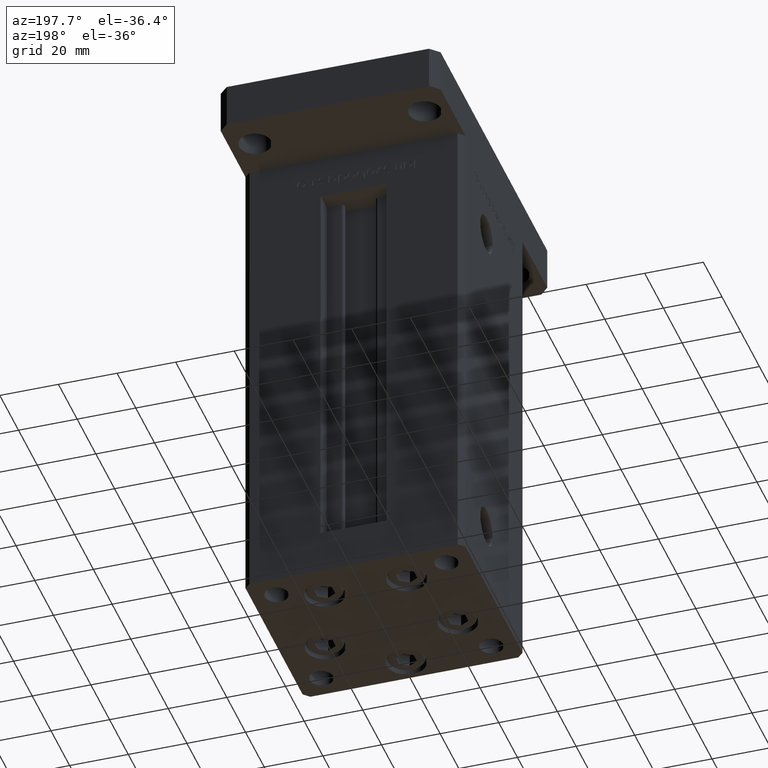
[diagram: clean part render]
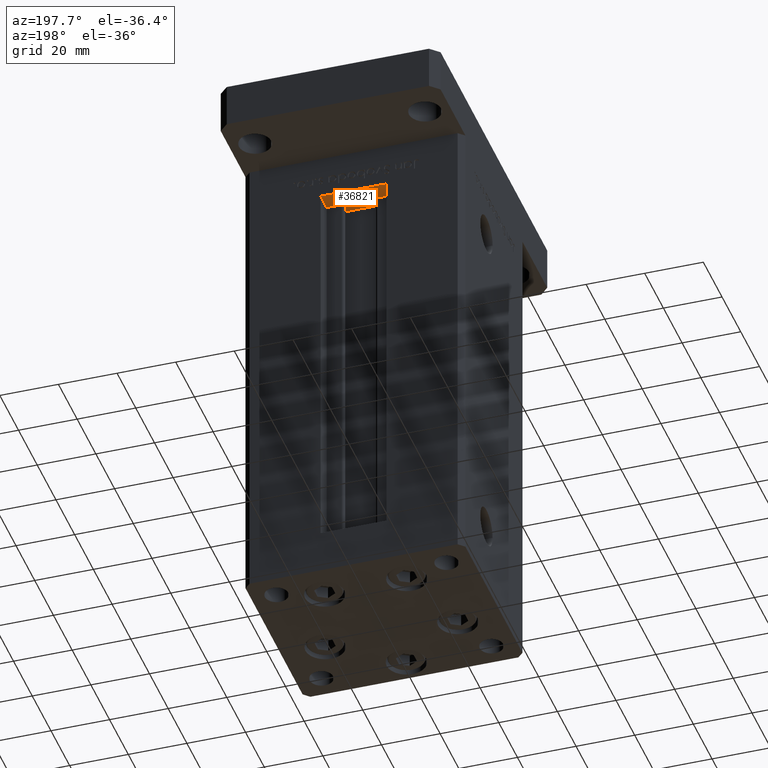
[diagram: same view with one face highlighted and labeled with its STEP entity id]
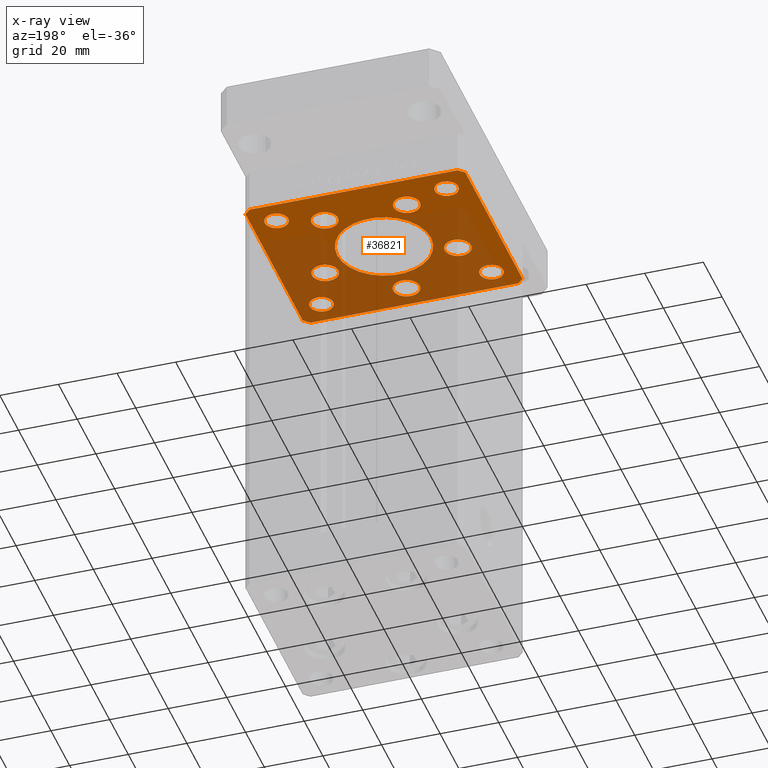
[diagram: x-ray of the same camera — body ghosted, the highlighted face saturated]
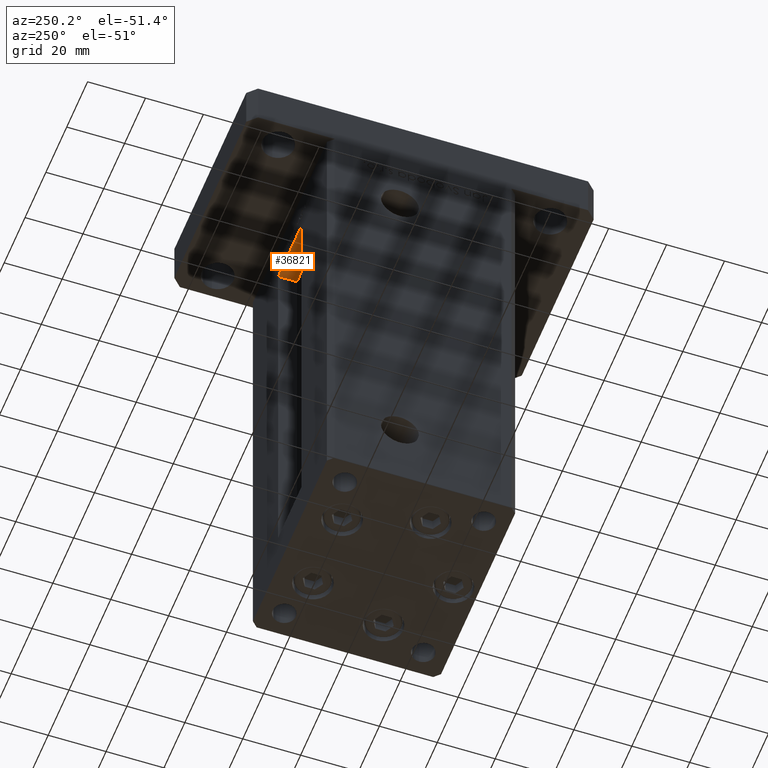
[diagram: same view with one face highlighted and labeled with its STEP entity id]
A machine part, auxiliary view. The second image highlights one B-rep face of the part: STEP entity #36821.
The next image is the same camera in x-ray: the body ghosted, the highlighted face saturated — about 59% of this face is hidden behind the body in this view.
A second angle (auxiliary view) of the same face is appended — the face is thin or edge-on in the first view.
In plain terms, the highlighted planar face has unit normal (0, 0, 1).
Its self-contained STEP definition (entity closure, byte-faithful):
#229 = ORIENTED_EDGE ( 'NONE', *, *, #48311, .F. ) ;
#548 = VERTEX_POINT ( 'NONE', #7159 ) ;
#653 = EDGE_CURVE ( 'NONE', #31100, #50083, #42931, .T. ) ;
#700 = EDGE_CURVE ( 'NONE', #44246, #24739, #36889, .T. ) ;
#725 = ORIENTED_EDGE ( 'NONE', *, *, #16187, .F. ) ;
#941 = CARTESIAN_POINT ( 'NONE',  ( 9.491068579633235913, 19.50000000000000000, -15.00000000000000000 ) ) ;
#952 = VERTEX_POINT ( 'NONE', #12699 ) ;
#1143 = CIRCLE ( 'NONE', #2898, 4.499999999999997335 ) ;
#1306 = VERTEX_POINT ( 'NONE', #941 ) ;
#1564 = EDGE_CURVE ( 'NONE', #40722, #37104, #23697, .T. ) ;
#1602 = EDGE_CURVE ( 'NONE', #31591, #13652, #7487, .T. ) ;
#1984 = CARTESIAN_POINT ( 'NONE',  ( -37.50000000000001421, 30.50000000000000000, -15.00000000000000000 ) ) ;
#2059 = CIRCLE ( 'NONE', #31506, 4.000000000000000000 ) ;
#2186 = VERTEX_POINT ( 'NONE', #8757 ) ;
#2227 = FACE_BOUND ( 'NONE', #10775, .T. ) ;
#2349 = EDGE_CURVE ( 'NONE', #2186, #45705, #33508, .T. ) ;
#2522 = VERTEX_POINT ( 'NONE', #47347 ) ;
#2582 = ORIENTED_EDGE ( 'NONE', *, *, #2349, .F. ) ;
#2668 = CARTESIAN_POINT ( 'NONE',  ( -37.50000000000000000, -30.50000000000004263, -15.00000000000000000 ) ) ;
#2898 = AXIS2_PLACEMENT_3D ( 'NONE', #15111, #48978, #6716 ) ;
#2991 = CARTESIAN_POINT ( 'NONE',  ( -9.491068579633243019, 19.50000000000000000, -15.00000000000000000 ) ) ;
#3102 = DIRECTION ( 'NONE',  ( 0.7071067811865463515, 0.7071067811865487940, 0.000000000000000000 ) ) ;
#3416 = EDGE_CURVE ( 'NONE', #18304, #29034, #37692, .T. ) ;
#3692 = CARTESIAN_POINT ( 'NONE',  ( 27.12741699796953654, -8.000000000000000000, -15.00000000000000000 ) ) ;
#4127 = DIRECTION ( 'NONE',  ( 1.000000000000000000, 0.000000000000000000, 0.000000000000000000 ) ) ;
#4706 = FACE_BOUND ( 'NONE', #35765, .T. ) ;
#5764 = FACE_BOUND ( 'NONE', #25107, .T. ) ;
#5979 = DIRECTION ( 'NONE',  ( 0.000000000000000000, -0.000000000000000000, -1.000000000000000000 ) ) ;
#6294 = DIRECTION ( 'NONE',  ( 1.000000000000000000, 0.000000000000000000, 0.000000000000000000 ) ) ;
#6716 = DIRECTION ( 'NONE',  ( 1.000000000000000000, 0.000000000000000000, 0.000000000000000000 ) ) ;
#6894 = EDGE_CURVE ( 'NONE', #11114, #52916, #12957, .T. ) ;
#6978 = AXIS2_PLACEMENT_3D ( 'NONE', #16585, #24977, #4127 ) ;
#7159 = CARTESIAN_POINT ( 'NONE',  ( -18.12741699796953654, -8.000000000000000000, -15.00000000000000000 ) ) ;
#7399 = VERTEX_POINT ( 'NONE', #53135 ) ;
#7487 = CIRCLE ( 'NONE', #43838, 4.499999999999999112 ) ;
#8100 = LINE ( 'NONE', #37617, #32939 ) ;
#8228 = DIRECTION ( 'NONE',  ( 0.000000000000000000, -0.000000000000000000, -1.000000000000000000 ) ) ;
#8487 = VECTOR ( 'NONE', #32492, 1000.000000000000000 ) ;
#8554 = DIRECTION ( 'NONE',  ( 1.000000000000000000, 0.000000000000000000, 0.000000000000000000 ) ) ;
#8635 = DIRECTION ( 'NONE',  ( -1.000000000000000000, 0.000000000000000000, 0.000000000000000000 ) ) ;
#8757 = CARTESIAN_POINT ( 'NONE',  ( 18.12741699796953299, -8.000000000000000000, -15.00000000000000000 ) ) ;
#8763 = FACE_BOUND ( 'NONE', #24824, .T. ) ;
#8972 = ORIENTED_EDGE ( 'NONE', *, *, #12352, .F. ) ;
#9074 = DIRECTION ( 'NONE',  ( 0.000000000000000000, -0.000000000000000000, -1.000000000000000000 ) ) ;
#9240 = AXIS2_PLACEMENT_3D ( 'NONE', #22820, #43410, #39350 ) ;
#9814 = CARTESIAN_POINT ( 'NONE',  ( -18.49106857963323947, 19.50000000000000000, -15.00000000000000000 ) ) ;
#10094 = CARTESIAN_POINT ( 'NONE',  ( 0.000000000000000000, 0.000000000000000000, -15.00000000000000000 ) ) ;
#10334 = AXIS2_PLACEMENT_3D ( 'NONE', #23704, #31825, #11506 ) ;
#10541 = AXIS2_PLACEMENT_3D ( 'NONE', #16603, #37200, #28522 ) ;
#10775 = EDGE_LOOP ( 'NONE', ( #29762, #38805 ) ) ;
#10855 = DIRECTION ( 'NONE',  ( 0.000000000000000000, -0.000000000000000000, -1.000000000000000000 ) ) ;
#11114 = VERTEX_POINT ( 'NONE', #45146 ) ;
#11168 = FACE_BOUND ( 'NONE', #44059, .T. ) ;
#11235 = VECTOR ( 'NONE', #33107, 1000.000000000000000 ) ;
#11463 = ORIENTED_EDGE ( 'NONE', *, *, #19867, .F. ) ;
#11506 = DIRECTION ( 'NONE',  ( -1.000000000000000000, 0.000000000000000000, 0.000000000000000000 ) ) ;
#11661 = CARTESIAN_POINT ( 'NONE',  ( -33.00000000000000000, 24.00000000000000711, -15.00000000000000000 ) ) ;
#11884 = ORIENTED_EDGE ( 'NONE', *, *, #14170, .F. ) ;
#12099 = AXIS2_PLACEMENT_3D ( 'NONE', #30104, #5979, #25777 ) ;
#12352 = EDGE_CURVE ( 'NONE', #45705, #2186, #14801, .T. ) ;
#12535 = EDGE_CURVE ( 'NONE', #44723, #18304, #53167, .T. ) ;
#12697 = DIRECTION ( 'NONE',  ( 0.000000000000000000, 1.000000000000000000, 0.000000000000000000 ) ) ;
#12699 = CARTESIAN_POINT ( 'NONE',  ( -25.00000000000000000, 24.00000000000000711, -15.00000000000000000 ) ) ;
#12781 = VECTOR ( 'NONE', #35773, 1000.000000000000000 ) ;
#12825 = AXIS2_PLACEMENT_3D ( 'NONE', #18884, #47884, #26732 ) ;
#12957 = CIRCLE ( 'NONE', #12099, 4.500000000000001776 ) ;
#13579 = DIRECTION ( 'NONE',  ( -1.000000000000000000, 0.000000000000000000, 0.000000000000000000 ) ) ;
#13652 = VERTEX_POINT ( 'NONE', #2991 ) ;
#13797 = DIRECTION ( 'NONE',  ( 1.000000000000000000, 0.000000000000000000, 0.000000000000000000 ) ) ;
#13943 = VECTOR ( 'NONE', #40169, 1000.000000000000000 ) ;
#14170 = EDGE_CURVE ( 'NONE', #1306, #35000, #25206, .T. ) ;
#14337 = ORIENTED_EDGE ( 'NONE', *, *, #653, .T. ) ;
#14708 = ORIENTED_EDGE ( 'NONE', *, *, #42757, .F. ) ;
#14801 = CIRCLE ( 'NONE', #47680, 4.500000000000000888 ) ;
#14843 = EDGE_CURVE ( 'NONE', #952, #48464, #46901, .T. ) ;
#14844 = EDGE_CURVE ( 'NONE', #50083, #31100, #26120, .T. ) ;
#14987 = CARTESIAN_POINT ( 'NONE',  ( -32.99999999999999289, -23.99999999999999645, -15.00000000000000000 ) ) ;
#15111 = CARTESIAN_POINT ( 'NONE',  ( -22.62741699796953299, -8.000000000000000000, -15.00000000000000000 ) ) ;
#15173 = CARTESIAN_POINT ( 'NONE',  ( -35.50000000000000711, 32.49999999999997868, -15.00000000000000000 ) ) ;
#15450 = ORIENTED_EDGE ( 'NONE', *, *, #47749, .F. ) ;
#16039 = CARTESIAN_POINT ( 'NONE',  ( 35.50000000000000000, 32.49999999999999289, -15.00000000000000000 ) ) ;
#16187 = EDGE_CURVE ( 'NONE', #29034, #49546, #50927, .T. ) ;
#16253 = DIRECTION ( 'NONE',  ( 0.000000000000000000, -0.000000000000000000, -1.000000000000000000 ) ) ;
#16312 = LINE ( 'NONE', #45567, #11235 ) ;
#16332 = EDGE_LOOP ( 'NONE', ( #229, #11884 ) ) ;
#16497 = CIRCLE ( 'NONE', #42433, 4.000000000000000000 ) ;
#16585 = CARTESIAN_POINT ( 'NONE',  ( 13.99106857963324124, 19.50000000000000000, -15.00000000000000000 ) ) ;
#16603 = CARTESIAN_POINT ( 'NONE',  ( -29.00000000000000000, -23.99999999999999645, -15.00000000000000000 ) ) ;
#16655 = ORIENTED_EDGE ( 'NONE', *, *, #18331, .F. ) ;
#16692 = CARTESIAN_POINT ( 'NONE',  ( -22.62741699796953299, -8.000000000000000000, -15.00000000000000000 ) ) ;
#16997 = VECTOR ( 'NONE', #3102, 1000.000000000000000 ) ;
#17091 = CARTESIAN_POINT ( 'NONE',  ( -27.12741699796953299, -8.000000000000000000, -15.00000000000000000 ) ) ;
#17177 = FACE_BOUND ( 'NONE', #47500, .T. ) ;
#17440 = AXIS2_PLACEMENT_3D ( 'NONE', #44582, #44311, #24245 ) ;
#18134 = DIRECTION ( 'NONE',  ( 2.275047181608926165E-16, -1.000000000000000000, 0.000000000000000000 ) ) ;
#18174 = CARTESIAN_POINT ( 'NONE',  ( -29.00000000000000000, 24.00000000000000711, -15.00000000000000000 ) ) ;
#18304 = VERTEX_POINT ( 'NONE', #22426 ) ;
#18331 = EDGE_CURVE ( 'NONE', #548, #27298, #1143, .T. ) ;
#18682 = AXIS2_PLACEMENT_3D ( 'NONE', #52550, #30132, #52278 ) ;
#18692 = CARTESIAN_POINT ( 'NONE',  ( -16.00000000000000355, 1.959434878635765526E-15, -15.00000000000000000 ) ) ;
#18884 = CARTESIAN_POINT ( 'NONE',  ( 29.00000000000000000, 24.00000000000000355, -15.00000000000000000 ) ) ;
#19299 = CARTESIAN_POINT ( 'NONE',  ( 22.62741699796953299, -8.000000000000000000, -15.00000000000000000 ) ) ;
#19582 = CARTESIAN_POINT ( 'NONE',  ( -25.00000000000000355, -23.99999999999999645, -15.00000000000000000 ) ) ;
#19628 = CARTESIAN_POINT ( 'NONE',  ( -13.99106857963324124, 19.50000000000000000, -15.00000000000000000 ) ) ;
#19867 = EDGE_CURVE ( 'NONE', #2522, #44723, #42107, .T. ) ;
#20067 = AXIS2_PLACEMENT_3D ( 'NONE', #49935, #20664, #37462 ) ;
#20292 = LINE ( 'NONE', #31200, #8487 ) ;
#20514 = ORIENTED_EDGE ( 'NONE', *, *, #14844, .T. ) ;
#20546 = VERTEX_POINT ( 'NONE', #44659 ) ;
#20664 = DIRECTION ( 'NONE',  ( -0.000000000000000000, -0.000000000000000000, -1.000000000000000000 ) ) ;
#22174 = CIRCLE ( 'NONE', #26493, 4.499999999999997335 ) ;
#22295 = FACE_BOUND ( 'NONE', #45457, .T. ) ;
#22426 = CARTESIAN_POINT ( 'NONE',  ( -35.50000000000000711, 32.49999999999997868, -15.00000000000000000 ) ) ;
#22820 = CARTESIAN_POINT ( 'NONE',  ( 22.62741699796953299, -8.000000000000000000, -15.00000000000000000 ) ) ;
#23268 = CARTESIAN_POINT ( 'NONE',  ( 29.00000000000000000, 24.00000000000000355, -15.00000000000000000 ) ) ;
#23366 = PLANE ( 'NONE',  #50880 ) ;
#23457 = ORIENTED_EDGE ( 'NONE', *, *, #3416, .F. ) ;
#23527 = AXIS2_PLACEMENT_3D ( 'NONE', #23268, #39806, #13797 ) ;
#23576 = CARTESIAN_POINT ( 'NONE',  ( 0.000000000000000000, 0.000000000000000000, -15.00000000000000000 ) ) ;
#23697 = LINE ( 'NONE', #40229, #16997 ) ;
#23704 = CARTESIAN_POINT ( 'NONE',  ( 29.00000000000000355, -23.99999999999999645, -15.00000000000000000 ) ) ;
#24228 = AXIS2_PLACEMENT_3D ( 'NONE', #23576, #16253, #32780 ) ;
#24245 = DIRECTION ( 'NONE',  ( 1.000000000000000000, 0.000000000000000000, 0.000000000000000000 ) ) ;
#24550 = VECTOR ( 'NONE', #46441, 1000.000000000000000 ) ;
#24739 = VERTEX_POINT ( 'NONE', #18692 ) ;
#24824 = EDGE_LOOP ( 'NONE', ( #33345, #31292 ) ) ;
#24894 = EDGE_CURVE ( 'NONE', #46401, #7399, #2059, .T. ) ;
#24977 = DIRECTION ( 'NONE',  ( 0.000000000000000000, -0.000000000000000000, -1.000000000000000000 ) ) ;
#25107 = EDGE_LOOP ( 'NONE', ( #50528, #31405 ) ) ;
#25150 = CIRCLE ( 'NONE', #6978, 4.500000000000005329 ) ;
#25206 = CIRCLE ( 'NONE', #17440, 4.500000000000005329 ) ;
#25290 = FACE_BOUND ( 'NONE', #37261, .T. ) ;
#25777 = DIRECTION ( 'NONE',  ( 1.000000000000000000, 0.000000000000000000, 0.000000000000000000 ) ) ;
#25840 = CARTESIAN_POINT ( 'NONE',  ( 37.50000000000000711, 30.50000000000001421, -15.00000000000000000 ) ) ;
#25891 = EDGE_CURVE ( 'NONE', #13652, #31591, #33256, .T. ) ;
#26120 = CIRCLE ( 'NONE', #10541, 3.999999999999996447 ) ;
#26261 = CARTESIAN_POINT ( 'NONE',  ( -37.50000000000001421, 30.50000000000000000, -15.00000000000000000 ) ) ;
#26486 = AXIS2_PLACEMENT_3D ( 'NONE', #36287, #41159, #36831 ) ;
#26493 = AXIS2_PLACEMENT_3D ( 'NONE', #16692, #9074, #8554 ) ;
#26618 = DIRECTION ( 'NONE',  ( 0.000000000000000000, -0.000000000000000000, -1.000000000000000000 ) ) ;
#26732 = DIRECTION ( 'NONE',  ( 1.000000000000000000, 0.000000000000000000, 0.000000000000000000 ) ) ;
#26844 = CIRCLE ( 'NONE', #49384, 4.500000000000001776 ) ;
#27298 = VERTEX_POINT ( 'NONE', #17091 ) ;
#27922 = CARTESIAN_POINT ( 'NONE',  ( 0.000000000000000000, -24.00000000000001066, -15.00000000000000000 ) ) ;
#28522 = DIRECTION ( 'NONE',  ( 1.000000000000000000, 0.000000000000000000, 0.000000000000000000 ) ) ;
#28917 = AXIS2_PLACEMENT_3D ( 'NONE', #44266, #48336, #52124 ) ;
#29034 = VERTEX_POINT ( 'NONE', #1984 ) ;
#29253 = CIRCLE ( 'NONE', #12825, 4.000000000000000000 ) ;
#29734 = CARTESIAN_POINT ( 'NONE',  ( 35.50000000000001421, -32.49999999999992184, -15.00000000000000000 ) ) ;
#29762 = ORIENTED_EDGE ( 'NONE', *, *, #14843, .F. ) ;
#29836 = DIRECTION ( 'NONE',  ( -0.000000000000000000, -0.000000000000000000, -1.000000000000000000 ) ) ;
#30096 = ORIENTED_EDGE ( 'NONE', *, *, #41514, .T. ) ;
#30104 = CARTESIAN_POINT ( 'NONE',  ( 0.000000000000000000, -24.00000000000001066, -15.00000000000000000 ) ) ;
#30132 = DIRECTION ( 'NONE',  ( 0.000000000000000000, 0.000000000000000000, 1.000000000000000000 ) ) ;
#30493 = VERTEX_POINT ( 'NONE', #36276 ) ;
#30827 = ORIENTED_EDGE ( 'NONE', *, *, #41226, .F. ) ;
#31100 = VERTEX_POINT ( 'NONE', #19582 ) ;
#31200 = CARTESIAN_POINT ( 'NONE',  ( -35.50000000000001421, -32.50000000000000711, -15.00000000000000000 ) ) ;
#31225 = EDGE_CURVE ( 'NONE', #27298, #548, #22174, .T. ) ;
#31292 = ORIENTED_EDGE ( 'NONE', *, *, #1602, .F. ) ;
#31405 = ORIENTED_EDGE ( 'NONE', *, *, #49300, .F. ) ;
#31506 = AXIS2_PLACEMENT_3D ( 'NONE', #46561, #46297, #8635 ) ;
#31591 = VERTEX_POINT ( 'NONE', #9814 ) ;
#31825 = DIRECTION ( 'NONE',  ( -0.000000000000000000, -0.000000000000000000, -1.000000000000000000 ) ) ;
#32180 = ORIENTED_EDGE ( 'NONE', *, *, #12535, .F. ) ;
#32492 = DIRECTION ( 'NONE',  ( 1.000000000000000000, 1.172770800660376149E-15, 0.000000000000000000 ) ) ;
#32780 = DIRECTION ( 'NONE',  ( 1.000000000000000000, 0.000000000000000000, 0.000000000000000000 ) ) ;
#32939 = VECTOR ( 'NONE', #12697, 1000.000000000000000 ) ;
#33107 = DIRECTION ( 'NONE',  ( 0.7071067811865512365, -0.7071067811865439090, 0.000000000000000000 ) ) ;
#33256 = CIRCLE ( 'NONE', #28917, 4.499999999999999112 ) ;
#33260 = ORIENTED_EDGE ( 'NONE', *, *, #46701, .F. ) ;
#33345 = ORIENTED_EDGE ( 'NONE', *, *, #25891, .F. ) ;
#33508 = CIRCLE ( 'NONE', #9240, 4.500000000000000888 ) ;
#33738 = CIRCLE ( 'NONE', #24228, 16.00000000000000355 ) ;
#34251 = DIRECTION ( 'NONE',  ( 1.000000000000000000, 0.000000000000000000, 0.000000000000000000 ) ) ;
#35000 = VERTEX_POINT ( 'NONE', #47524 ) ;
#35634 = CIRCLE ( 'NONE', #23527, 4.000000000000000000 ) ;
#35765 = EDGE_LOOP ( 'NONE', ( #16655, #38416 ) ) ;
#35773 = DIRECTION ( 'NONE',  ( -0.7071067811865524577, -0.7071067811865426878, 0.000000000000000000 ) ) ;
#36216 = CARTESIAN_POINT ( 'NONE',  ( 35.50000000000000000, 32.49999999999999289, -15.00000000000000000 ) ) ;
#36253 = CARTESIAN_POINT ( 'NONE',  ( 16.00000000000000355, 0.000000000000000000, -15.00000000000000000 ) ) ;
#36276 = CARTESIAN_POINT ( 'NONE',  ( 33.00000000000000000, 24.00000000000000355, -15.00000000000000000 ) ) ;
#36287 = CARTESIAN_POINT ( 'NONE',  ( 0.000000000000000000, 0.000000000000000000, -15.00000000000000000 ) ) ;
#36821 = ADVANCED_FACE ( 'NONE', ( #42889, #4706, #5764, #22295, #38831, #8763, #25290, #17177, #51822, #2227, #11168 ), #23366, .F. ) ;
#36831 = DIRECTION ( 'NONE',  ( 1.000000000000000000, 0.000000000000000000, 0.000000000000000000 ) ) ;
#36889 = CIRCLE ( 'NONE', #26486, 16.00000000000000355 ) ;
#37104 = VERTEX_POINT ( 'NONE', #50953 ) ;
#37200 = DIRECTION ( 'NONE',  ( 0.000000000000000000, 0.000000000000000000, 1.000000000000000000 ) ) ;
#37261 = EDGE_LOOP ( 'NONE', ( #41975, #30096 ) ) ;
#37462 = DIRECTION ( 'NONE',  ( -1.000000000000000000, 0.000000000000000000, 0.000000000000000000 ) ) ;
#37617 = CARTESIAN_POINT ( 'NONE',  ( 37.50000000000000711, -30.49999999999992895, -15.00000000000000000 ) ) ;
#37692 = LINE ( 'NONE', #15173, #12781 ) ;
#38285 = DIRECTION ( 'NONE',  ( 1.000000000000000000, 0.000000000000000000, 0.000000000000000000 ) ) ;
#38314 = ORIENTED_EDGE ( 'NONE', *, *, #700, .F. ) ;
#38416 = ORIENTED_EDGE ( 'NONE', *, *, #31225, .F. ) ;
#38805 = ORIENTED_EDGE ( 'NONE', *, *, #48375, .F. ) ;
#38831 = FACE_BOUND ( 'NONE', #16332, .T. ) ;
#39350 = DIRECTION ( 'NONE',  ( 1.000000000000000000, 0.000000000000000000, 0.000000000000000000 ) ) ;
#39806 = DIRECTION ( 'NONE',  ( 0.000000000000000000, 0.000000000000000000, 1.000000000000000000 ) ) ;
#40169 = DIRECTION ( 'NONE',  ( -1.000000000000000000, -1.954618001100627573E-16, 0.000000000000000000 ) ) ;
#40229 = CARTESIAN_POINT ( 'NONE',  ( 35.50000000000001421, -32.49999999999992184, -15.00000000000000000 ) ) ;
#40722 = VERTEX_POINT ( 'NONE', #29734 ) ;
#41159 = DIRECTION ( 'NONE',  ( 0.000000000000000000, -0.000000000000000000, -1.000000000000000000 ) ) ;
#41226 = EDGE_CURVE ( 'NONE', #52838, #40722, #20292, .T. ) ;
#41514 = EDGE_CURVE ( 'NONE', #20546, #30493, #29253, .T. ) ;
#41975 = ORIENTED_EDGE ( 'NONE', *, *, #52725, .T. ) ;
#42107 = LINE ( 'NONE', #25840, #24550 ) ;
#42433 = AXIS2_PLACEMENT_3D ( 'NONE', #18174, #29836, #13579 ) ;
#42757 = EDGE_CURVE ( 'NONE', #49546, #52838, #16312, .T. ) ;
#42889 = FACE_BOUND ( 'NONE', #53460, .T. ) ;
#42931 = CIRCLE ( 'NONE', #18682, 3.999999999999996447 ) ;
#43205 = CIRCLE ( 'NONE', #10334, 4.000000000000000000 ) ;
#43410 = DIRECTION ( 'NONE',  ( 0.000000000000000000, -0.000000000000000000, -1.000000000000000000 ) ) ;
#43838 = AXIS2_PLACEMENT_3D ( 'NONE', #19628, #8228, #38285 ) ;
#44059 = EDGE_LOOP ( 'NONE', ( #52336, #33260 ) ) ;
#44246 = VERTEX_POINT ( 'NONE', #36253 ) ;
#44266 = CARTESIAN_POINT ( 'NONE',  ( -13.99106857963324124, 19.50000000000000000, -15.00000000000000000 ) ) ;
#44311 = DIRECTION ( 'NONE',  ( 0.000000000000000000, -0.000000000000000000, -1.000000000000000000 ) ) ;
#44582 = CARTESIAN_POINT ( 'NONE',  ( 13.99106857963324124, 19.50000000000000000, -15.00000000000000000 ) ) ;
#44659 = CARTESIAN_POINT ( 'NONE',  ( 24.99999999999999645, 24.00000000000000355, -15.00000000000000000 ) ) ;
#44723 = VERTEX_POINT ( 'NONE', #36216 ) ;
#45146 = CARTESIAN_POINT ( 'NONE',  ( 4.500000000000001776, -24.00000000000001066, -15.00000000000000000 ) ) ;
#45427 = EDGE_CURVE ( 'NONE', #37104, #2522, #8100, .T. ) ;
#45457 = EDGE_LOOP ( 'NONE', ( #8972, #2582 ) ) ;
#45567 = CARTESIAN_POINT ( 'NONE',  ( -37.50000000000000000, -30.50000000000004263, -15.00000000000000000 ) ) ;
#45705 = VERTEX_POINT ( 'NONE', #3692 ) ;
#46060 = VECTOR ( 'NONE', #18134, 1000.000000000000000 ) ;
#46297 = DIRECTION ( 'NONE',  ( -0.000000000000000000, -0.000000000000000000, -1.000000000000000000 ) ) ;
#46401 = VERTEX_POINT ( 'NONE', #48431 ) ;
#46441 = DIRECTION ( 'NONE',  ( -0.7071067811865524577, 0.7071067811865426878, 0.000000000000000000 ) ) ;
#46561 = CARTESIAN_POINT ( 'NONE',  ( 29.00000000000000355, -23.99999999999999645, -15.00000000000000000 ) ) ;
#46701 = EDGE_CURVE ( 'NONE', #7399, #46401, #43205, .T. ) ;
#46901 = CIRCLE ( 'NONE', #20067, 4.000000000000000000 ) ;
#47347 = CARTESIAN_POINT ( 'NONE',  ( 37.50000000000000711, 30.50000000000001421, -15.00000000000000000 ) ) ;
#47500 = EDGE_LOOP ( 'NONE', ( #14337, #20514 ) ) ;
#47524 = CARTESIAN_POINT ( 'NONE',  ( 18.49106857963324657, 19.50000000000000000, -15.00000000000000000 ) ) ;
#47680 = AXIS2_PLACEMENT_3D ( 'NONE', #19299, #26618, #6294 ) ;
#47749 = EDGE_CURVE ( 'NONE', #24739, #44246, #33738, .T. ) ;
#47806 = EDGE_LOOP ( 'NONE', ( #14708, #725, #23457, #32180, #11463, #52749, #48735, #30827 ) ) ;
#47884 = DIRECTION ( 'NONE',  ( 0.000000000000000000, 0.000000000000000000, 1.000000000000000000 ) ) ;
#48038 = DIRECTION ( 'NONE',  ( -0.000000000000000000, 0.000000000000000000, 1.000000000000000000 ) ) ;
#48305 = DIRECTION ( 'NONE',  ( 1.000000000000000000, 0.000000000000000000, 0.000000000000000000 ) ) ;
#48311 = EDGE_CURVE ( 'NONE', #35000, #1306, #25150, .T. ) ;
#48336 = DIRECTION ( 'NONE',  ( 0.000000000000000000, -0.000000000000000000, -1.000000000000000000 ) ) ;
#48375 = EDGE_CURVE ( 'NONE', #48464, #952, #16497, .T. ) ;
#48431 = CARTESIAN_POINT ( 'NONE',  ( 33.00000000000000000, -23.99999999999999645, -15.00000000000000000 ) ) ;
#48464 = VERTEX_POINT ( 'NONE', #11661 ) ;
#48735 = ORIENTED_EDGE ( 'NONE', *, *, #1564, .F. ) ;
#48978 = DIRECTION ( 'NONE',  ( 0.000000000000000000, -0.000000000000000000, -1.000000000000000000 ) ) ;
#49300 = EDGE_CURVE ( 'NONE', #52916, #11114, #26844, .T. ) ;
#49384 = AXIS2_PLACEMENT_3D ( 'NONE', #27922, #10855, #34251 ) ;
#49546 = VERTEX_POINT ( 'NONE', #2668 ) ;
#49935 = CARTESIAN_POINT ( 'NONE',  ( -29.00000000000000000, 24.00000000000000711, -15.00000000000000000 ) ) ;
#50083 = VERTEX_POINT ( 'NONE', #14987 ) ;
#50528 = ORIENTED_EDGE ( 'NONE', *, *, #6894, .F. ) ;
#50603 = CARTESIAN_POINT ( 'NONE',  ( -4.500000000000001776, -24.00000000000001066, -15.00000000000000000 ) ) ;
#50880 = AXIS2_PLACEMENT_3D ( 'NONE', #10094, #48038, #48305 ) ;
#50927 = LINE ( 'NONE', #26261, #46060 ) ;
#50953 = CARTESIAN_POINT ( 'NONE',  ( 37.50000000000000711, -30.49999999999992895, -15.00000000000000000 ) ) ;
#51822 = FACE_OUTER_BOUND ( 'NONE', #47806, .T. ) ;
#52124 = DIRECTION ( 'NONE',  ( 1.000000000000000000, 0.000000000000000000, 0.000000000000000000 ) ) ;
#52278 = DIRECTION ( 'NONE',  ( 1.000000000000000000, 0.000000000000000000, 0.000000000000000000 ) ) ;
#52336 = ORIENTED_EDGE ( 'NONE', *, *, #24894, .F. ) ;
#52550 = CARTESIAN_POINT ( 'NONE',  ( -29.00000000000000000, -23.99999999999999645, -15.00000000000000000 ) ) ;
#52725 = EDGE_CURVE ( 'NONE', #30493, #20546, #35634, .T. ) ;
#52749 = ORIENTED_EDGE ( 'NONE', *, *, #45427, .F. ) ;
#52838 = VERTEX_POINT ( 'NONE', #53075 ) ;
#52916 = VERTEX_POINT ( 'NONE', #50603 ) ;
#53075 = CARTESIAN_POINT ( 'NONE',  ( -35.50000000000001421, -32.50000000000000711, -15.00000000000000000 ) ) ;
#53135 = CARTESIAN_POINT ( 'NONE',  ( 25.00000000000000355, -23.99999999999999645, -15.00000000000000000 ) ) ;
#53167 = LINE ( 'NONE', #16039, #13943 ) ;
#53460 = EDGE_LOOP ( 'NONE', ( #38314, #15450 ) ) ;